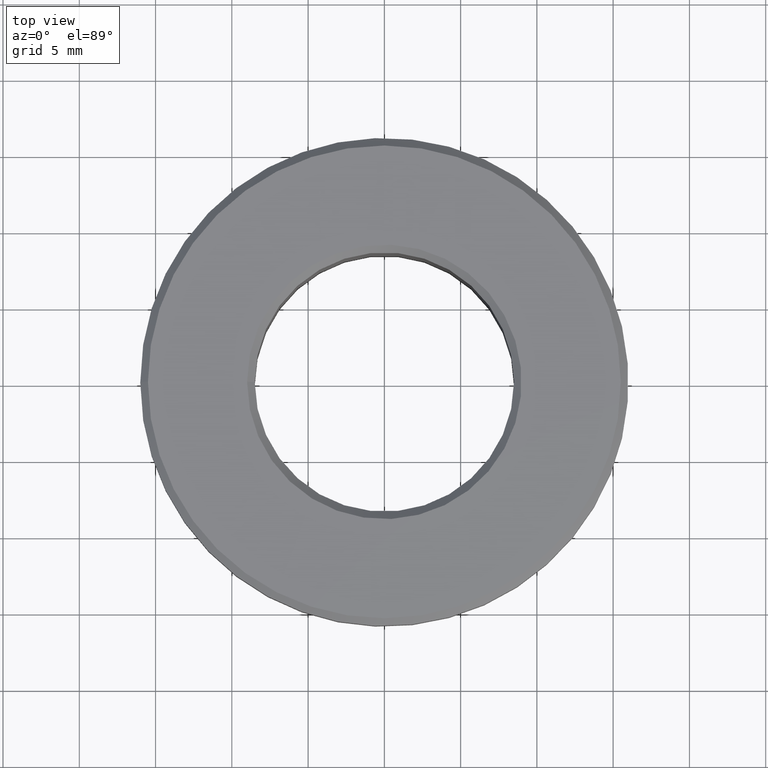
[diagram: clean part render]
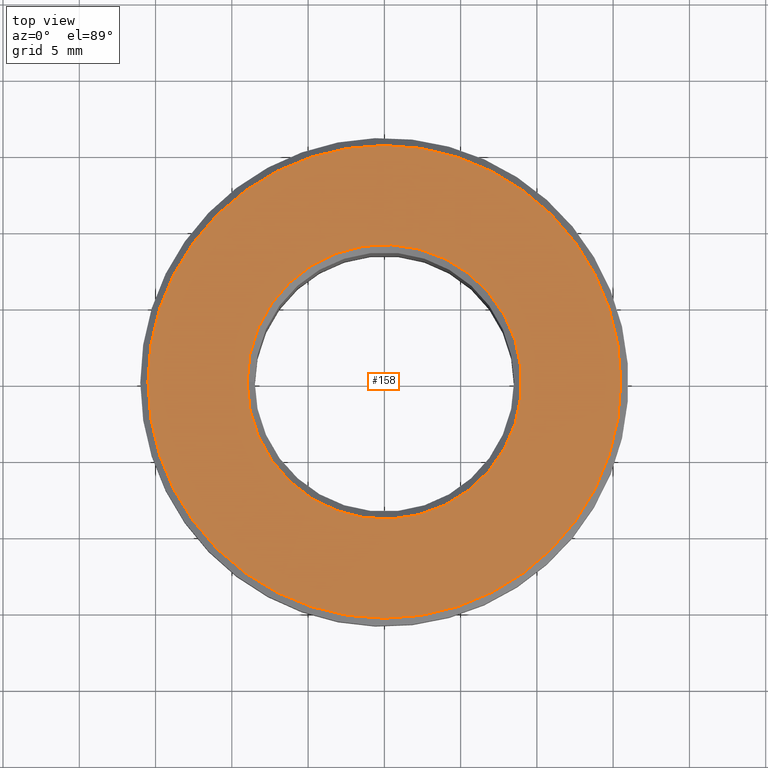
[diagram: same view with one face highlighted and labeled with its STEP entity id]
A machine part, top view. The second image highlights one B-rep face of the part: STEP entity #158.
In plain terms, the highlighted planar face has unit normal (0, -0, 1).
Its self-contained STEP definition (entity closure, byte-faithful):
#158=ADVANCED_FACE('',(#185,#186),#187,.T.);
#185=FACE_BOUND('',#234,.T.);
#186=FACE_OUTER_BOUND('',#235,.T.);
#187=PLANE('',#236);
#234=EDGE_LOOP('',(#301));
#235=EDGE_LOOP('',(#302));
#236=AXIS2_PLACEMENT_3D('',#303,#304,#305);
#301=ORIENTED_EDGE('',*,*,#385,.T.);
#302=ORIENTED_EDGE('',*,*,#388,.F.);
#303=CARTESIAN_POINT('',(0.0155,0.0,0.016));
#304=DIRECTION('',(0.0,6.12323399573677E-017,1.0));
#305=DIRECTION('',(0.0,-1.0,6.12323399573677E-017));
#385=EDGE_CURVE('',#419,#419,#420,.T.);
#388=EDGE_CURVE('',#425,#425,#426,.T.);
#419=VERTEX_POINT('',#495);
#420=CIRCLE('',#496,0.009);
#425=VERTEX_POINT('',#501);
#426=CIRCLE('',#502,0.0155);
#495=CARTESIAN_POINT('',(0.0,0.009,0.016));
#496=AXIS2_PLACEMENT_3D('',#536,#537,#538);
#501=CARTESIAN_POINT('',(0.0,0.0155,0.016));
#502=AXIS2_PLACEMENT_3D('',#545,#546,#547);
#536=CARTESIAN_POINT('',(0.0,0.0,0.016));
#537=DIRECTION('',(0.0,-6.12323399573677E-017,-1.0));
#538=DIRECTION('',(0.0,1.0,-6.12323399573677E-017));
#545=CARTESIAN_POINT('',(0.0,0.0,0.016));
#546=DIRECTION('',(0.0,-6.12323399573677E-017,-1.0));
#547=DIRECTION('',(0.0,1.0,-6.12323399573677E-017));